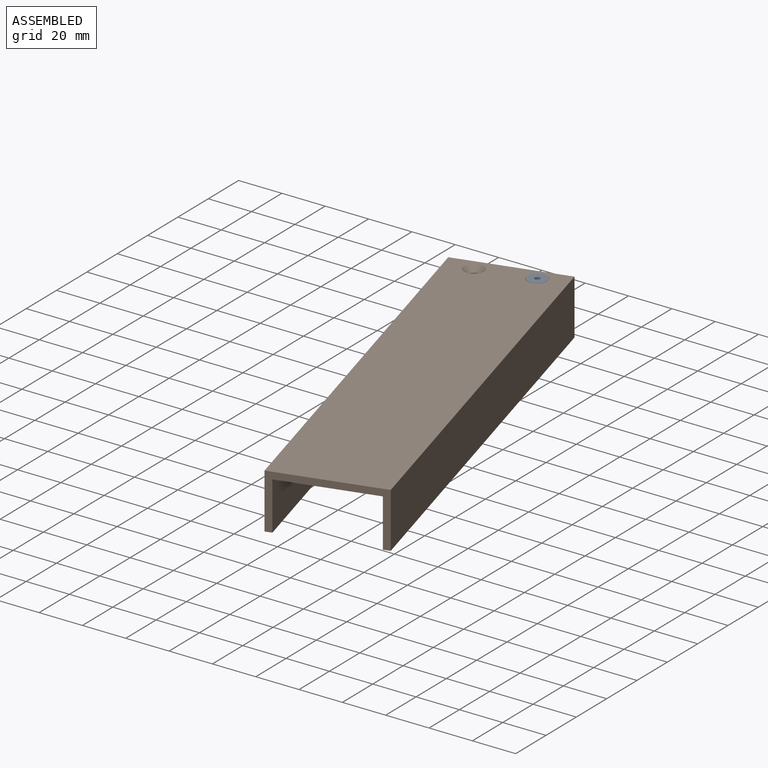
[diagram: assembled view]
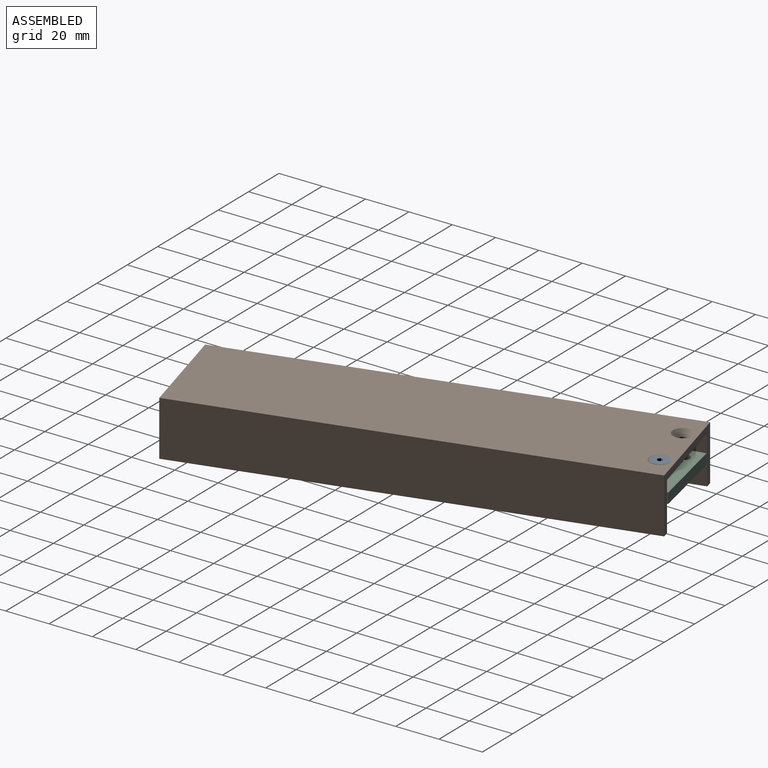
[diagram: assembled view, second angle]
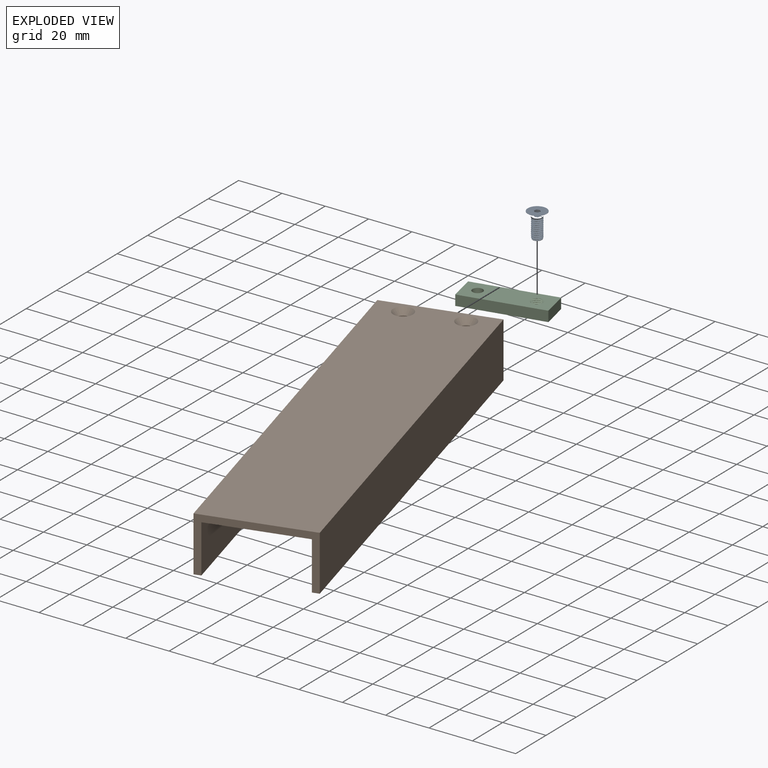
[diagram: exploded view]
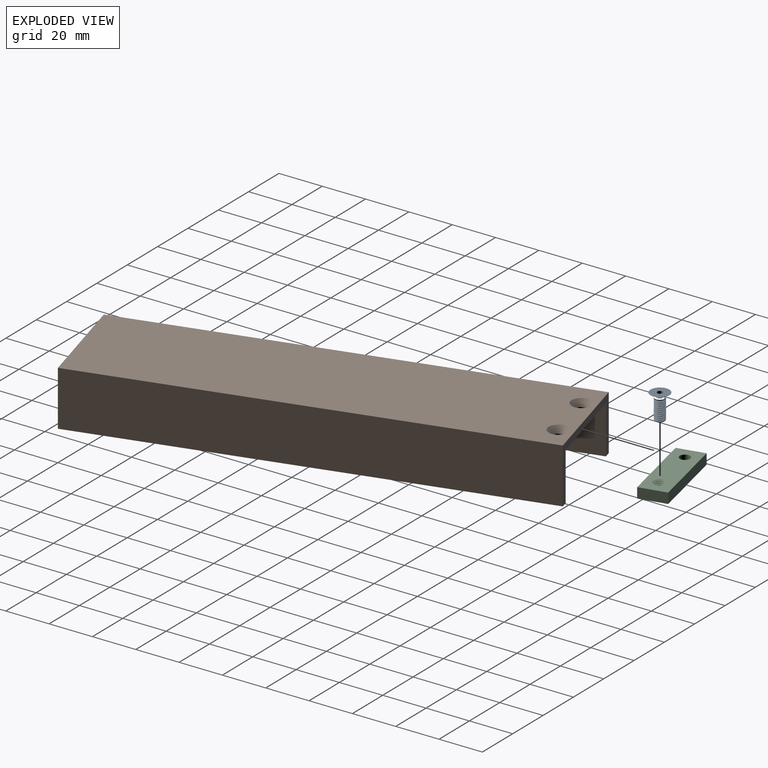
[diagram: exploded view, second angle]
ASSEMBLY  parts=3 mates=2
PART A: 17 faces, bbox 8.8x12x8.8 mm
  f0: plane 8.71x8.71mm, normal (0,1,0), area 54.8mm2, adj f4,f10,f11,f12,f13,f14,f15
  f1: cylinder r=2.37mm len=9.09mm, axis (0,1,0), area 4.4mm2, adj f3,f5,f7,f8,f9
  f2: plane 4.34x4.34mm, normal (0,-1,0), area 13.7mm2, adj f3,f6,f9
  f3: cone r=2.12mm half-angle=30deg, axis (0,1,0), area 3mm2, adj f1,f2,f6,f9
  f4: cylinder r=4.36mm len=8.71mm, axis (0,1,0), area 1.4mm2, adj f0,f5
  f5: cone r=2.37mm half-angle=45deg, axis (0,1,0), area 59.2mm2, adj f1,f4
  f6: plane 0.66x0.44mm, normal (0,0,1), area 0.1mm2, adj f2,f3,f8,f9
  f7: plane 0.76x0.59mm, normal (-0.9,0,-0.44), area 0.3mm2, adj f1,f8,f9
  f8: bspline ~9.59x5.48mm, area 109.3mm2, adj f1,f6,f7,f9
  f9: bspline ~9.59x5.48mm, area 106.4mm2, adj f1,f2,f3,f6,f7,f8
  f10: plane 2.03x1.33mm, normal (-0.22,0,-0.98), area 2.8mm2, adj f0,f11,f15,f16
  f11: plane 2.03x1.3mm, normal (-0.95,0,-0.3), area 2.8mm2, adj f0,f10,f12,f16
  f12: plane 2.03x1mm, normal (-0.74,0,0.68), area 2.8mm2, adj f0,f11,f13,f16
  f13: plane 2.03x1.33mm, normal (0.22,0,0.98), area 2.8mm2, adj f0,f12,f14,f16
  f14: plane 2.03x1.3mm, normal (0.95,0,0.3), area 2.8mm2, adj f0,f13,f15,f16
  f15: plane 2.03x1mm, normal (0.74,0,-0.68), area 2.8mm2, adj f0,f10,f14,f16
  f16: plane 2.66x2.6mm, normal (0,1,0), area 4.8mm2, adj f10,f11,f12,f13,f14,f15
PART B: 14 faces, bbox 50.8x203.2x25.4 mm
  f0: plane 203.2x25.4mm, normal (-1,0,0), area 5161.3mm2, adj f1,f7,f8,f9
  f1: plane 203.2x3.18mm, normal (0,0,-1), area 645.2mm2, adj f0,f2,f8,f9
  f2: plane 203.2x22.23mm, normal (1,0,0), area 4516.1mm2, adj f1,f3,f8,f9
  f3: plane 203.2x44.45mm, normal (0,0,-1), area 9000.5mm2, adj f2,f4,f8,f9,f10,f12
  f4: plane 203.2x22.23mm, normal (-1,0,0), area 4516.1mm2, adj f3,f5,f8,f9
  f5: plane 203.2x3.18mm, normal (0,0,-1), area 645.2mm2, adj f4,f6,f8,f9
  f6: plane 203.2x25.4mm, normal (1,0,0), area 5161.3mm2, adj f5,f7,f8,f9
  f7: plane 203.2x50.8mm, normal (0,0,1), area 10192mm2, adj f0,f6,f8,f9,f11,f13
  f8: plane 50.8x25.4mm, normal (0,-1,0), area 302.4mm2, adj f0,f1,f2,f3,f4,f5,f6,f7
  f9: plane 50.8x25.4mm, normal (0,1,0), area 302.4mm2, adj f0,f1,f2,f3,f4,f5,f6,f7
  f10: cylinder r=2.25mm len=4.5mm, axis (0,0,1), area 7.3mm2, adj f3,f11
  f11: cone r=2.25mm half-angle=41deg, axis (0,0,1), area 75.3mm2, adj f7,f10
  f12: cylinder r=2.25mm len=4.5mm, axis (0,0,1), area 7.3mm2, adj f3,f13
  f13: cone r=2.25mm half-angle=41deg, axis (0,0,1), area 75.3mm2, adj f7,f12
PART C: 10 faces, bbox 38.6x13.2x6.2 mm
  f0: plane 38.1x4.75mm, normal (0,1,0), area 181mm2, adj f1,f5,f6,f7
  f1: plane 12.7x4.75mm, normal (-1,0,0), area 60.3mm2, adj f0,f2,f6,f7
  f2: plane 38.1x4.75mm, normal (0,-1,0), area 181mm2, adj f1,f5,f6,f7
  f3: cylinder r=2.37mm len=4.75mm, axis (0,0,-1), area 70.9mm2, adj f6,f7
  f4: cylinder r=2.37mm len=4.75mm, axis (0,0,-1), area 3.5mm2, adj f6,f7,f8,f9
  f5: plane 12.7x4.75mm, normal (1,0,0), area 60.3mm2, adj f0,f2,f6,f7
  f6: plane 38.63x13.23mm, normal (0,0,1), area 443.4mm2, adj f0,f1,f2,f3,f4,f5,f8,f9
  f7: plane 38.62x13.22mm, normal (0,0,-1), area 443.4mm2, adj f0,f1,f2,f3,f4,f5,f8,f9
  f8: bspline ~7x6.12mm, area 75.5mm2, adj f4,f6,f7,f9
  f9: bspline ~7x6.12mm, area 75.7mm2, adj f4,f6,f7,f8
PLACE A rot(axis=(0.79,-0.43,-0.43),103.2deg) t=(79.01,21.24,29.2)mm
PLACE B rot(axis=(0,0,1),15deg) t=(62.24,23.32,3.77)mm
PLACE C rot(axis=(0,0,1),12.6deg) t=(47.45,20.71,14.95)mm
MATE cylindrical A.f1 <-> C.f4  axis (0,0,-1) through (79.01,21.24,17.65)mm
MATE cylindrical B.f12 <-> A.f1  axis (0,0,1) through (79.01,21.24,27.84)mm
